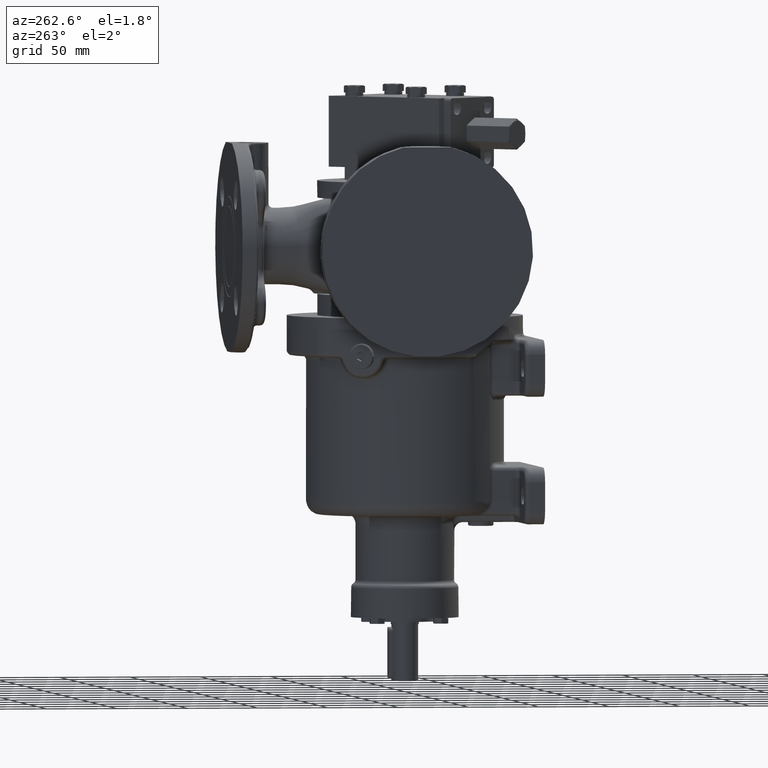
[diagram: clean part render]
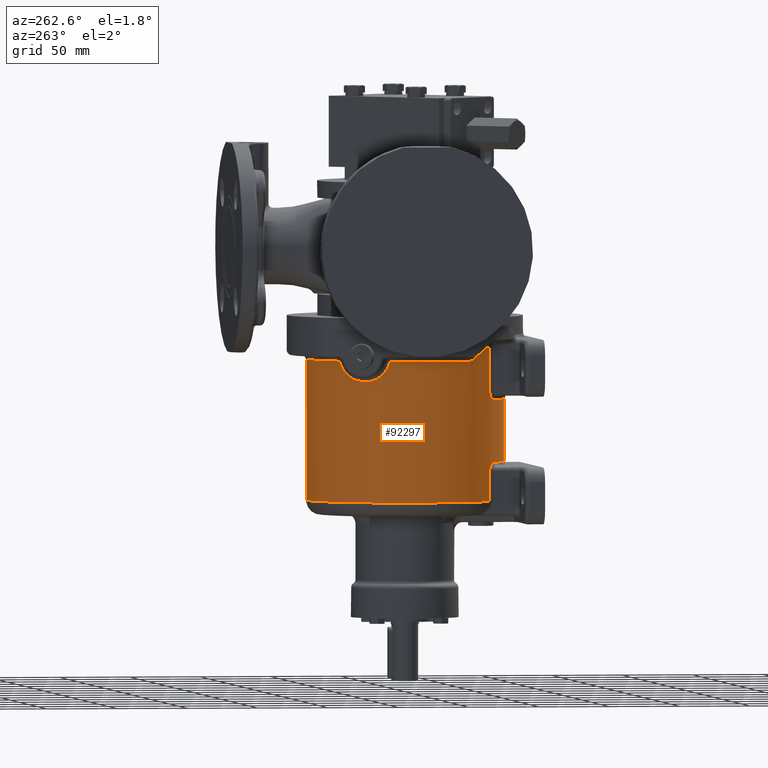
[diagram: same view with one face highlighted and labeled with its STEP entity id]
A machine part, auxiliary view. The second image highlights one B-rep face of the part: STEP entity #92297.
In plain terms, the highlighted cylindrical surface (partial cylindrical patch) has radius 70 mm, axis along (0, 0, 1).
Its self-contained STEP definition (entity closure, byte-faithful):
#26020=CARTESIAN_POINT('',(0.E0,0.E0,1.04E2));
#26021=DIRECTION('',(0.E0,0.E0,1.E0));
#26022=DIRECTION('',(-6.730944544147E-1,-7.395565261940E-1,0.E0));
#26023=AXIS2_PLACEMENT_3D('',#26020,#26021,#26022);
#26025=DIRECTION('',(0.E0,0.E0,-1.E0));
#26026=VECTOR('',#26025,3.1E1);
#26027=CARTESIAN_POINT('',(-4.363013698630E1,-5.473948434683E1,1.04E2));
#26028=LINE('',#26027,#26026);
#26029=CARTESIAN_POINT('',(-4.363013698630E1,-5.473948434683E1,7.3E1));
#26030=CARTESIAN_POINT('',(-4.363013695986E1,-5.473948437683E1,
7.291417054390E1));
#26031=CARTESIAN_POINT('',(-4.362660838589E1,-5.474229709621E1,
7.274247987779E1));
#26032=CARTESIAN_POINT('',(-4.361066586269E1,-5.475500031538E1,
7.248468360033E1));
#26033=CARTESIAN_POINT('',(-4.358401339833E1,-5.477622042771E1,
7.222712207952E1));
#26034=CARTESIAN_POINT('',(-4.354654245010E1,-5.480601820939E1,
7.196984729677E1));
#26035=CARTESIAN_POINT('',(-4.349810162602E1,-5.484447762934E1,
7.171300483235E1));
#26036=CARTESIAN_POINT('',(-4.343850616718E1,-5.489169771553E1,
7.145677669699E1));
#26037=CARTESIAN_POINT('',(-4.336753851881E1,-5.494779136948E1,
7.120138465215E1));
#26038=CARTESIAN_POINT('',(-4.328495688611E1,-5.501287776415E1,
7.094710725195E1));
#26039=CARTESIAN_POINT('',(-4.319050458292E1,-5.508707412081E1,
7.069429040645E1));
#26040=CARTESIAN_POINT('',(-4.308392084573E1,-5.517048642270E1,
7.044335467115E1));
#26041=CARTESIAN_POINT('',(-4.296494746773E1,-5.526320354780E1,
7.019479048951E1));
#26042=CARTESIAN_POINT('',(-4.283334401434E1,-5.536528491675E1,
6.994917080954E1));
#26043=CARTESIAN_POINT('',(-4.268890253150E1,-5.547674896242E1,
6.970715424135E1));
#26044=CARTESIAN_POINT('',(-4.253146296552E1,-5.559756157667E1,
6.946948519423E1));
#26045=CARTESIAN_POINT('',(-4.236092967024E1,-5.572762438558E1,
6.923699156858E1));
#26046=CARTESIAN_POINT('',(-4.217728774393E1,-5.586676395048E1,
6.901057856251E1));
#26047=CARTESIAN_POINT('',(-4.198061865344E1,-5.601472240150E1,
6.879121875886E1));
#26048=CARTESIAN_POINT('',(-4.177111409191E1,-5.617115035051E1,
6.857993824435E1));
#26049=CARTESIAN_POINT('',(-4.154908709002E1,-5.633560279808E1,
6.837779900759E1));
#26050=CARTESIAN_POINT('',(-4.131497942910E1,-5.650753864149E1,
6.818587815934E1));
#26051=CARTESIAN_POINT('',(-4.106936459286E1,-5.668632415733E1,
6.800524486282E1));
#26052=CARTESIAN_POINT('',(-4.081294566104E1,-5.687124062088E1,
6.783693607704E1));
#26053=CARTESIAN_POINT('',(-4.054654827260E1,-5.706149562930E1,
6.768193263547E1));
#26054=CARTESIAN_POINT('',(-4.027110878024E1,-5.725623767028E1,
6.754113689238E1));
#26055=CARTESIAN_POINT('',(-3.998765825975E1,-5.745457308264E1,
6.741535323923E1));
#26056=CARTESIAN_POINT('',(-3.969730337871E1,-5.765558436589E1,
6.730527248894E1));
#26057=CARTESIAN_POINT('',(-3.940120562948E1,-5.785834848950E1,
6.721146112307E1));
#26058=CARTESIAN_POINT('',(-3.910056027070E1,-5.806195422978E1,
6.713435476960E1));
#26059=CARTESIAN_POINT('',(-3.879657116686E1,-5.826552059803E1,
6.707425765769E1));
#26060=CARTESIAN_POINT('',(-3.849044955326E1,-5.846819894587E1,
6.703134328330E1));
#26061=CARTESIAN_POINT('',(-3.818333345315E1,-5.866922329312E1,
6.700566976005E1));
#26062=CARTESIAN_POINT('',(-3.797891676939E1,-5.880150212665E1,
6.700000006513E1));
#26063=CARTESIAN_POINT('',(-3.787671232877E1,-5.886726308538E1,6.7E1));
#26065=CARTESIAN_POINT('',(0.E0,0.E0,6.7E1));
#26066=DIRECTION('',(0.E0,0.E0,1.E0));
#26067=DIRECTION('',(-5.410958904110E-1,-8.409609012198E-1,0.E0));
#26068=AXIS2_PLACEMENT_3D('',#26065,#26066,#26067);
#26070=CARTESIAN_POINT('',(0.E0,-1.200151863164E-14,2.3E1));
#26071=DIRECTION('',(0.E0,0.E0,-1.E0));
#26072=DIRECTION('',(0.E0,-1.E0,0.E0));
#26073=AXIS2_PLACEMENT_3D('',#26070,#26071,#26072);
#26075=CARTESIAN_POINT('',(-3.787671232877E1,-5.886726308538E1,2.3E1));
#26076=CARTESIAN_POINT('',(-3.797891683843E1,-5.880150208251E1,
2.299999993321E1));
#26077=CARTESIAN_POINT('',(-3.818333345589E1,-5.866922328947E1,
2.299433021816E1));
#26078=CARTESIAN_POINT('',(-3.849044842689E1,-5.846819968430E1,
2.296865682402E1));
#26079=CARTESIAN_POINT('',(-3.879656916657E1,-5.826552192900E1,
2.292574265714E1));
#26080=CARTESIAN_POINT('',(-3.910055815049E1,-5.806195565682E1,
2.286564568623E1));
#26081=CARTESIAN_POINT('',(-3.940120303363E1,-5.785835025665E1,
2.278853957630E1));
#26082=CARTESIAN_POINT('',(-3.969730090438E1,-5.765558606990E1,
2.269472831995E1));
#26083=CARTESIAN_POINT('',(-3.998765584522E1,-5.745457476346E1,
2.258464767981E1));
#26084=CARTESIAN_POINT('',(-4.027110669162E1,-5.725623914035E1,
2.245886401496E1));
#26085=CARTESIAN_POINT('',(-4.054654667042E1,-5.706149676910E1,
2.231806813136E1));
#26086=CARTESIAN_POINT('',(-4.081294470860E1,-5.687124130607E1,
2.216306438796E1));
#26087=CARTESIAN_POINT('',(-4.106936442290E1,-5.668632428231E1,
2.199475511784E1));
#26088=CARTESIAN_POINT('',(-4.131498009539E1,-5.650753815614E1,
2.181412117585E1));
#26089=CARTESIAN_POINT('',(-4.154908857260E1,-5.633560170632E1,
2.162219955917E1));
#26090=CARTESIAN_POINT('',(-4.177111636426E1,-5.617114866224E1,
2.142005942886E1));
#26091=CARTESIAN_POINT('',(-4.198062165771E1,-5.601472015126E1,
2.120877791686E1));
#26092=CARTESIAN_POINT('',(-4.217729139112E1,-5.586676119805E1,
2.098941704029E1));
#26093=CARTESIAN_POINT('',(-4.236093385376E1,-5.572762120634E1,
2.076300291120E1));
#26094=CARTESIAN_POINT('',(-4.253146759666E1,-5.559755803457E1,
2.053050809707E1));
#26095=CARTESIAN_POINT('',(-4.268890754286E1,-5.547674510672E1,
2.029283776135E1));
#26096=CARTESIAN_POINT('',(-4.283334928517E1,-5.536528083918E1,
2.005081987670E1));
#26097=CARTESIAN_POINT('',(-4.296495279047E1,-5.526319940958E1,
1.980519903484E1));
#26098=CARTESIAN_POINT('',(-4.308392617875E1,-5.517048225811E1,
1.955663358715E1));
#26099=CARTESIAN_POINT('',(-4.319051006682E1,-5.508706982141E1,
1.930569599189E1));
#26100=CARTESIAN_POINT('',(-4.328496254143E1,-5.501287331454E1,
1.905287668162E1));
#26101=CARTESIAN_POINT('',(-4.336754413711E1,-5.494778693510E1,
1.879859677380E1));
#26102=CARTESIAN_POINT('',(-4.343851144070E1,-5.489169354200E1,
1.854320263884E1));
#26103=CARTESIAN_POINT('',(-4.349810627739E1,-5.484447393990E1,
1.828697311510E1));
#26104=CARTESIAN_POINT('',(-4.354654640642E1,-5.480601506554E1,
1.803012904812E1));
#26105=CARTESIAN_POINT('',(-4.358401649286E1,-5.477621796517E1,
1.777285351086E1));
#26106=CARTESIAN_POINT('',(-4.361066805803E1,-5.475499856676E1,
1.751529037579E1));
#26107=CARTESIAN_POINT('',(-4.362660909334E1,-5.474229653167E1,
1.725749923536E1));
#26108=CARTESIAN_POINT('',(-4.363013695710E1,-5.473948438030E1,
1.708582121881E1));
#26109=CARTESIAN_POINT('',(-4.363013698630E1,-5.473948434683E1,1.7E1));
#26111=DIRECTION('',(0.E0,0.E0,-1.E0));
#26112=VECTOR('',#26111,2.15E1);
#26113=CARTESIAN_POINT('',(-4.363013698630E1,-5.473948434683E1,1.7E1));
#26114=LINE('',#26113,#26112);
#26115=CARTESIAN_POINT('',(0.E0,-1.536929732930E-14,-4.5E0));
#26116=DIRECTION('',(0.E0,0.E0,1.E0));
#26117=DIRECTION('',(0.E0,1.E0,0.E0));
#26118=AXIS2_PLACEMENT_3D('',#26115,#26116,#26117);
#26120=CARTESIAN_POINT('',(0.E0,0.E0,9.5E1));
#26121=DIRECTION('',(0.E0,0.E0,1.E0));
#26122=DIRECTION('',(0.E0,1.E0,0.E0));
#26123=AXIS2_PLACEMENT_3D('',#26120,#26121,#26122);
#26125=CARTESIAN_POINT('',(-4.647223446229E1,5.234817498330E1,9.5E1));
#26126=CARTESIAN_POINT('',(-4.651413315330E1,5.231097930584E1,
9.480790647314E1));
#26127=CARTESIAN_POINT('',(-4.660424907512E1,5.223080011248E1,
9.442293773094E1));
#26128=CARTESIAN_POINT('',(-4.675877021713E1,5.209254845855E1,
9.384320428525E1));
#26129=CARTESIAN_POINT('',(-4.693289357002E1,5.193576771920E1,
9.326177524837E1));
#26130=CARTESIAN_POINT('',(-4.712701405913E1,5.175973261929E1,
9.267875737779E1));
#26131=CARTESIAN_POINT('',(-4.734141795994E1,5.156375752271E1,
9.209466977451E1));
#26132=CARTESIAN_POINT('',(-4.757635871750E1,5.134712552229E1,
9.151009798051E1));
#26133=CARTESIAN_POINT('',(-4.783198191742E1,5.110915457580E1,
9.092586647059E1));
#26134=CARTESIAN_POINT('',(-4.810831340873E1,5.084920867375E1,
9.034299283637E1));
#26135=CARTESIAN_POINT('',(-4.840521843173E1,5.056673811831E1,
8.976272144433E1));
#26136=CARTESIAN_POINT('',(-4.872237534462E1,5.026130975811E1,
8.918651322498E1));
#26137=CARTESIAN_POINT('',(-4.905924740716E1,4.993264285147E1,
8.861604065404E1));
#26138=CARTESIAN_POINT('',(-4.941506331801E1,4.958064088736E1,
8.805316635386E1));
#26139=CARTESIAN_POINT('',(-4.978880637253E1,4.920541931166E1,
8.749991161763E1));
#26140=CARTESIAN_POINT('',(-5.017921545077E1,4.880732551786E1,
8.695841320649E1));
#26141=CARTESIAN_POINT('',(-5.058479848861E1,4.838694940636E1,
8.643087147433E1));
#26142=CARTESIAN_POINT('',(-5.100385915880E1,4.794512226783E1,
8.591949192199E1));
#26143=CARTESIAN_POINT('',(-5.143453455508E1,4.748290438249E1,
8.542642542222E1));
#26144=CARTESIAN_POINT('',(-5.187484144173E1,4.700156193160E1,
8.495371098300E1));
#26145=CARTESIAN_POINT('',(-5.232272963139E1,4.650253271542E1,
8.450322312563E1));
#26146=CARTESIAN_POINT('',(-5.277613534036E1,4.598738672248E1,
8.407663100266E1));
#26147=CARTESIAN_POINT('',(-5.323303062932E1,4.545778498194E1,
8.367537070092E1));
#26148=CARTESIAN_POINT('',(-5.369146773945E1,4.491543766019E1,
8.330062940936E1));
#26149=CARTESIAN_POINT('',(-5.414961544402E1,4.436206481531E1,
8.295334175022E1));
#26150=CARTESIAN_POINT('',(-5.460578628325E1,4.379936185195E1,
8.263419671452E1));
#26151=CARTESIAN_POINT('',(-5.505845465535E1,4.322897079194E1,
8.234365298690E1));
#26152=CARTESIAN_POINT('',(-5.550626641055E1,4.265245787523E1,
8.208196027863E1));
#26153=CARTESIAN_POINT('',(-5.594804156790E1,4.207129676823E1,
8.184918419757E1));
#26154=CARTESIAN_POINT('',(-5.638277022849E1,4.148685864149E1,
8.164523333646E1));
#26155=CARTESIAN_POINT('',(-5.680960630485E1,4.090040408105E1,
8.146988556767E1));
#26156=CARTESIAN_POINT('',(-5.722785324906E1,4.031308575140E1,
8.132281543002E1));
#26157=CARTESIAN_POINT('',(-5.763695720904E1,3.972594144726E1,
8.120361588711E1));
#26158=CARTESIAN_POINT('',(-5.803648618195E1,3.913990686672E1,
8.111182428609E1));
#26159=CARTESIAN_POINT('',(-5.842610219908E1,3.855584446660E1,
8.104693878492E1));
#26160=CARTESIAN_POINT('',(-5.880562181585E1,3.797443282178E1,
8.100843473166E1));
#26161=CARTESIAN_POINT('',(-5.905166823476E1,3.758925462314E1,
8.100000007102E1));
#26162=CARTESIAN_POINT('',(-5.917300840756E1,3.739726027397E1,8.1E1));
#26164=CARTESIAN_POINT('',(0.E0,0.E0,8.1E1));
#26165=DIRECTION('',(0.E0,0.E0,1.E0));
#26166=DIRECTION('',(-8.453286915366E-1,5.342465753424E-1,0.E0));
#26167=AXIS2_PLACEMENT_3D('',#26164,#26165,#26166);
#26169=CARTESIAN_POINT('',(-6.062177826491E1,3.5E1,8.1E1));
#26170=CARTESIAN_POINT('',(-6.072857601348E1,3.481502086248E1,
8.100000007546E1));
#26171=CARTESIAN_POINT('',(-6.094040502956E1,3.444421368545E1,
8.100826266078E1));
#26172=CARTESIAN_POINT('',(-6.125304019857E1,3.388512399331E1,
8.104549549605E1));
#26173=CARTESIAN_POINT('',(-6.155991608339E1,3.332435468028E1,
8.110755975946E1));
#26174=CARTESIAN_POINT('',(-6.186088373807E1,3.276226675040E1,
8.119447953503E1));
#26175=CARTESIAN_POINT('',(-6.215563431062E1,3.219955043004E1,
8.130626553720E1));
#26176=CARTESIAN_POINT('',(-6.244392961097E1,3.163681717496E1,
8.144293450671E1));
#26177=CARTESIAN_POINT('',(-6.272552223515E1,3.107474451080E1,
8.160449578934E1));
#26178=CARTESIAN_POINT('',(-6.300017682445E1,3.051404046427E1,
8.179094921424E1));
#26179=CARTESIAN_POINT('',(-6.326766362180E1,2.995545778226E1,
8.200227860863E1));
#26180=CARTESIAN_POINT('',(-6.352775988074E1,2.939979421834E1,
8.223844551128E1));
#26181=CARTESIAN_POINT('',(-6.378024995254E1,2.884789501381E1,
8.249938226918E1));
#26182=CARTESIAN_POINT('',(-6.402492613375E1,2.830065378481E1,
8.278498469260E1));
#26183=CARTESIAN_POINT('',(-6.426158982918E1,2.775901234191E1,
8.309510453881E1));
#26184=CARTESIAN_POINT('',(-6.449005309420E1,2.722395912903E1,
8.342954204146E1));
#26185=CARTESIAN_POINT('',(-6.471014046982E1,2.669652621155E1,
8.378803876301E1));
#26186=CARTESIAN_POINT('',(-6.492169100770E1,2.617778481577E1,
8.417027100157E1));
#26187=CARTESIAN_POINT('',(-6.512456044115E1,2.566883929176E1,
8.457584412376E1));
#26188=CARTESIAN_POINT('',(-6.531862337847E1,2.517081958557E1,
8.500428812332E1));
#26189=CARTESIAN_POINT('',(-6.550377537287E1,2.468487242066E1,
8.545505462639E1));
#26190=CARTESIAN_POINT('',(-6.567993476746E1,2.421215134603E1,
8.592751561229E1));
#26191=CARTESIAN_POINT('',(-6.584704419985E1,2.375380591661E1,
8.642096405378E1));
#26192=CARTESIAN_POINT('',(-6.600507163153E1,2.331097041598E1,
8.693461651513E1));
#26193=CARTESIAN_POINT('',(-6.615401081097E1,2.288475251571E1,
8.746761769951E1));
#26194=CARTESIAN_POINT('',(-6.629388109769E1,2.247622230738E1,
8.801904681294E1));
#26195=CARTESIAN_POINT('',(-6.642472660813E1,2.208640213241E1,
8.858792551231E1));
#26196=CARTESIAN_POINT('',(-6.654661466676E1,2.171625763746E1,
8.917322705027E1));
#26197=CARTESIAN_POINT('',(-6.665963363157E1,2.136669026900E1,
8.977388634736E1));
#26198=CARTESIAN_POINT('',(-6.676389010324E1,2.103853160465E1,
9.038881042777E1));
#26199=CARTESIAN_POINT('',(-6.685950562541E1,2.073253964142E1,
9.101688819323E1));
#26200=CARTESIAN_POINT('',(-6.694661320305E1,2.044939630473E1,
9.165700241868E1));
#26201=CARTESIAN_POINT('',(-6.702535267252E1,2.018970984887E1,
9.230802920434E1));
#26202=CARTESIAN_POINT('',(-6.709586921328E1,1.995400774729E1,
9.296887795243E1));
#26203=CARTESIAN_POINT('',(-6.715830054038E1,1.974276975990E1,
9.363837911726E1));
#26204=CARTESIAN_POINT('',(-6.721279921594E1,1.955634182046E1,
9.431565331909E1));
#26205=CARTESIAN_POINT('',(-6.724389831493E1,1.944892785821E1,
9.477115439240E1));
#26206=CARTESIAN_POINT('',(-6.725817807701E1,1.939941962436E1,9.5E1));
#26208=CARTESIAN_POINT('',(0.E0,0.E0,9.5E1));
#26209=DIRECTION('',(0.E0,0.E0,1.E0));
#26210=DIRECTION('',(-9.608311153858E-1,2.771345660622E-1,0.E0));
#26211=AXIS2_PLACEMENT_3D('',#26208,#26209,#26210);
#26213=CARTESIAN_POINT('',(-5.866577463082E1,-3.818804638843E1,9.5E1));
#26214=CARTESIAN_POINT('',(-5.859966241352E1,-3.828961023686E1,
9.500000006327E1));
#26215=CARTESIAN_POINT('',(-5.846667895708E1,-3.849275150599E1,
9.500559905285E1));
#26216=CARTESIAN_POINT('',(-5.826459380935E1,-3.879796207419E1,
9.503095319112E1));
#26217=CARTESIAN_POINT('',(-5.806084259852E1,-3.910221417830E1,
9.507333611627E1));
#26218=CARTESIAN_POINT('',(-5.785618951276E1,-3.940438385565E1,
9.513269259094E1));
#26219=CARTESIAN_POINT('',(-5.765147931202E1,-3.970327744118E1,
9.520885391188E1));
#26220=CARTESIAN_POINT('',(-5.744758992420E1,-3.999770685865E1,
9.530152221558E1));
#26221=CARTESIAN_POINT('',(-5.724542875614E1,-4.028649317485E1,
9.541027085473E1));
#26222=CARTESIAN_POINT('',(-5.704591825309E1,-4.056848614003E1,
9.553454088978E1));
#26223=CARTESIAN_POINT('',(-5.684996410014E1,-4.084260470306E1,
9.567366238908E1));
#26224=CARTESIAN_POINT('',(-5.665849365077E1,-4.110778069047E1,
9.582680762243E1));
#26225=CARTESIAN_POINT('',(-5.647223671606E1,-4.136325028637E1,
9.599320995342E1));
#26226=CARTESIAN_POINT('',(-5.635240045541E1,-4.152609764002E1,
9.611200070768E1));
#26227=CARTESIAN_POINT('',(-5.629349900070E1,-4.160579250847E1,
9.617337291757E1));
#26229=CARTESIAN_POINT('',(-5.629349900070E1,-4.160579250847E1,
9.617337291757E1));
#26230=CARTESIAN_POINT('',(-5.594465721624E1,-4.207778262335E1,
9.653685128975E1));
#26231=CARTESIAN_POINT('',(-5.523740276025E1,-4.300987539997E1,
9.725465361569E1));
#26232=CARTESIAN_POINT('',(-5.414902715269E1,-4.437217130872E1,
9.830375420404E1));
#26233=CARTESIAN_POINT('',(-5.303462014881E1,-4.569816572146E1,
9.932489915860E1));
#26234=CARTESIAN_POINT('',(-5.189557289808E1,-4.698754531473E1,
1.003178471177E2));
#26235=CARTESIAN_POINT('',(-5.073323724705E1,-4.824007904138E1,
1.012824201335E2));
#26236=CARTESIAN_POINT('',(-4.954894143441E1,-4.945559361743E1,
1.022184848933E2));
#26237=CARTESIAN_POINT('',(-4.834399832037E1,-5.063396152470E1,
1.031259429332E2));
#26238=CARTESIAN_POINT('',(-4.752775695067E1,-5.139476022390E1,
1.037118321371E2));
#26239=CARTESIAN_POINT('',(-4.711661180903E1,-5.176895683358E1,1.04E2));
#26722=DIRECTION('',(0.E0,0.E0,1.E0));
#26723=VECTOR('',#26722,9.95E1);
#26724=CARTESIAN_POINT('',(0.E0,7.E1,-4.5E0));
#26725=LINE('',#26724,#26723);
#26776=DIRECTION('',(0.E0,0.E0,1.E0));
#26777=VECTOR('',#26776,4.4E1);
#26778=CARTESIAN_POINT('',(0.E0,-7.E1,2.3E1));
#26779=LINE('',#26778,#26777);
#27773=CARTESIAN_POINT('',(-4.363013698630E1,-5.473948434683E1,-4.5E0));
#31902=VERTEX_POINT('',#27773);
#31904=CARTESIAN_POINT('',(-4.363013698630E1,-5.473948434683E1,1.7E1));
#31905=VERTEX_POINT('',#31904);
#31908=VERTEX_POINT('',#26075);
#31910=CARTESIAN_POINT('',(0.E0,-7.E1,2.3E1));
#31911=VERTEX_POINT('',#31910);
#31948=CARTESIAN_POINT('',(0.E0,7.E1,-4.5E0));
#31949=VERTEX_POINT('',#31948);
#32019=CARTESIAN_POINT('',(-4.711661180903E1,-5.176895683358E1,1.04E2));
#32020=CARTESIAN_POINT('',(-4.363013698630E1,-5.473948434683E1,1.04E2));
#32021=VERTEX_POINT('',#32019);
#32022=VERTEX_POINT('',#32020);
#32029=VERTEX_POINT('',#26229);
#32031=VERTEX_POINT('',#26213);
#32033=CARTESIAN_POINT('',(-6.725817807701E1,1.939941962436E1,9.5E1));
#32034=VERTEX_POINT('',#32033);
#32039=VERTEX_POINT('',#26169);
#32041=CARTESIAN_POINT('',(-5.917300840756E1,3.739726027397E1,8.1E1));
#32042=VERTEX_POINT('',#32041);
#32045=VERTEX_POINT('',#26125);
#32049=CARTESIAN_POINT('',(0.E0,7.E1,9.5E1));
#32050=VERTEX_POINT('',#32049);
#32099=CARTESIAN_POINT('',(-4.363013698630E1,-5.473948434683E1,7.3E1));
#32100=VERTEX_POINT('',#32099);
#32101=VERTEX_POINT('',#26063);
#32103=CARTESIAN_POINT('',(-1.421083471520E-14,-7.E1,6.7E1));
#32104=VERTEX_POINT('',#32103);
#92257=CARTESIAN_POINT('',(0.E0,-2.713202983511E-14,-1.0055E2));
#92258=DIRECTION('',(0.E0,0.E0,1.E0));
#92259=DIRECTION('',(0.E0,1.E0,0.E0));
#92260=AXIS2_PLACEMENT_3D('',#92257,#92258,#92259);
#92261=CYLINDRICAL_SURFACE('',#92260,7.E1);
#92263=ORIENTED_EDGE('',*,*,#92262,.T.);
#92265=ORIENTED_EDGE('',*,*,#92264,.T.);
#92267=ORIENTED_EDGE('',*,*,#92266,.T.);
#92269=ORIENTED_EDGE('',*,*,#92268,.T.);
#92271=ORIENTED_EDGE('',*,*,#92270,.F.);
#92273=ORIENTED_EDGE('',*,*,#92272,.T.);
#92275=ORIENTED_EDGE('',*,*,#92274,.T.);
#92277=ORIENTED_EDGE('',*,*,#92276,.T.);
#92279=ORIENTED_EDGE('',*,*,#92278,.F.);
#92281=ORIENTED_EDGE('',*,*,#92280,.T.);
#92283=ORIENTED_EDGE('',*,*,#92282,.T.);
#92285=ORIENTED_EDGE('',*,*,#92284,.T.);
#92287=ORIENTED_EDGE('',*,*,#92286,.T.);
#92289=ORIENTED_EDGE('',*,*,#92288,.T.);
#92291=ORIENTED_EDGE('',*,*,#92290,.T.);
#92292=ORIENTED_EDGE('',*,*,#92247,.T.);
#92294=ORIENTED_EDGE('',*,*,#92293,.T.);
#92295=EDGE_LOOP('',(#92263,#92265,#92267,#92269,#92271,#92273,#92275,#92277,
#92279,#92281,#92283,#92285,#92287,#92289,#92291,#92292,#92294));
#92296=FACE_OUTER_BOUND('',#92295,.F.);
#92297=ADVANCED_FACE('',(#92296),#92261,.T.);
#26024=CIRCLE('',#26023,7.E1);
#26064=B_SPLINE_CURVE_WITH_KNOTS('',3,(#26029,#26030,#26031,#26032,#26033,
#26034,#26035,#26036,#26037,#26038,#26039,#26040,#26041,#26042,#26043,#26044,
#26045,#26046,#26047,#26048,#26049,#26050,#26051,#26052,#26053,#26054,#26055,
#26056,#26057,#26058,#26059,#26060,#26061,#26062,#26063),.UNSPECIFIED.,.F.,.F.,(
4,1,1,1,1,1,1,1,1,1,1,1,1,1,1,1,1,1,1,1,1,1,1,1,1,1,1,1,1,1,1,1,4),(0.E0,
3.125E-2,6.25E-2,9.375E-2,1.25E-1,1.5625E-1,1.875E-1,2.1875E-1,2.5E-1,2.8125E-1,
3.125E-1,3.4375E-1,3.75E-1,4.0625E-1,4.375E-1,4.6875E-1,5.E-1,5.3125E-1,
5.625E-1,5.9375E-1,6.25E-1,6.5625E-1,6.875E-1,7.1875E-1,7.5E-1,7.8125E-1,
8.125E-1,8.4375E-1,8.75E-1,9.0625E-1,9.375E-1,9.6875E-1,1.E0),.UNSPECIFIED.);
#26069=CIRCLE('',#26068,7.E1);
#26074=CIRCLE('',#26073,7.E1);
#26110=B_SPLINE_CURVE_WITH_KNOTS('',3,(#26075,#26076,#26077,#26078,#26079,
#26080,#26081,#26082,#26083,#26084,#26085,#26086,#26087,#26088,#26089,#26090,
#26091,#26092,#26093,#26094,#26095,#26096,#26097,#26098,#26099,#26100,#26101,
#26102,#26103,#26104,#26105,#26106,#26107,#26108,#26109),.UNSPECIFIED.,.F.,.F.,(
4,1,1,1,1,1,1,1,1,1,1,1,1,1,1,1,1,1,1,1,1,1,1,1,1,1,1,1,1,1,1,1,4),(0.E0,
3.125E-2,6.25E-2,9.375E-2,1.25E-1,1.5625E-1,1.875E-1,2.1875E-1,2.5E-1,2.8125E-1,
3.125E-1,3.4375E-1,3.75E-1,4.0625E-1,4.375E-1,4.6875E-1,5.E-1,5.3125E-1,
5.625E-1,5.9375E-1,6.25E-1,6.5625E-1,6.875E-1,7.1875E-1,7.5E-1,7.8125E-1,
8.125E-1,8.4375E-1,8.75E-1,9.0625E-1,9.375E-1,9.6875E-1,1.E0),.UNSPECIFIED.);
#26119=CIRCLE('',#26118,7.E1);
#26124=CIRCLE('',#26123,7.E1);
#26163=B_SPLINE_CURVE_WITH_KNOTS('',3,(#26125,#26126,#26127,#26128,#26129,
#26130,#26131,#26132,#26133,#26134,#26135,#26136,#26137,#26138,#26139,#26140,
#26141,#26142,#26143,#26144,#26145,#26146,#26147,#26148,#26149,#26150,#26151,
#26152,#26153,#26154,#26155,#26156,#26157,#26158,#26159,#26160,#26161,#26162),
.UNSPECIFIED.,.F.,.F.,(4,1,1,1,1,1,1,1,1,1,1,1,1,1,1,1,1,1,1,1,1,1,1,1,1,1,1,1,
1,1,1,1,1,1,1,4),(0.E0,2.857142857143E-2,5.714285714286E-2,8.571428571429E-2,
1.142857142857E-1,1.428571428571E-1,1.714285714286E-1,2.E-1,2.285714285714E-1,
2.571428571429E-1,2.857142857143E-1,3.142857142857E-1,3.428571428571E-1,
3.714285714286E-1,4.E-1,4.285714285714E-1,4.571428571429E-1,4.857142857143E-1,
5.142857142857E-1,5.428571428571E-1,5.714285714286E-1,6.E-1,6.285714285714E-1,
6.571428571429E-1,6.857142857143E-1,7.142857142857E-1,7.428571428571E-1,
7.714285714286E-1,8.E-1,8.285714285714E-1,8.571428571429E-1,8.857142857143E-1,
9.142857142857E-1,9.428571428571E-1,9.714285714286E-1,1.E0),.UNSPECIFIED.);
#26168=CIRCLE('',#26167,7.E1);
#26207=B_SPLINE_CURVE_WITH_KNOTS('',3,(#26169,#26170,#26171,#26172,#26173,
#26174,#26175,#26176,#26177,#26178,#26179,#26180,#26181,#26182,#26183,#26184,
#26185,#26186,#26187,#26188,#26189,#26190,#26191,#26192,#26193,#26194,#26195,
#26196,#26197,#26198,#26199,#26200,#26201,#26202,#26203,#26204,#26205,#26206),
.UNSPECIFIED.,.F.,.F.,(4,1,1,1,1,1,1,1,1,1,1,1,1,1,1,1,1,1,1,1,1,1,1,1,1,1,1,1,
1,1,1,1,1,1,1,4),(0.E0,2.857142857143E-2,5.714285714286E-2,8.571428571429E-2,
1.142857142857E-1,1.428571428571E-1,1.714285714286E-1,2.E-1,2.285714285714E-1,
2.571428571429E-1,2.857142857143E-1,3.142857142857E-1,3.428571428571E-1,
3.714285714286E-1,4.E-1,4.285714285714E-1,4.571428571429E-1,4.857142857143E-1,
5.142857142857E-1,5.428571428571E-1,5.714285714286E-1,6.E-1,6.285714285714E-1,
6.571428571429E-1,6.857142857143E-1,7.142857142857E-1,7.428571428571E-1,
7.714285714286E-1,8.E-1,8.285714285714E-1,8.571428571429E-1,8.857142857143E-1,
9.142857142857E-1,9.428571428571E-1,9.714285714286E-1,1.E0),.UNSPECIFIED.);
#26212=CIRCLE('',#26211,7.E1);
#26228=B_SPLINE_CURVE_WITH_KNOTS('',3,(#26213,#26214,#26215,#26216,#26217,
#26218,#26219,#26220,#26221,#26222,#26223,#26224,#26225,#26226,#26227),
.UNSPECIFIED.,.F.,.F.,(4,1,1,1,1,1,1,1,1,1,1,1,4),(0.E0,8.333333333333E-2,
1.666666666667E-1,2.5E-1,3.333333333333E-1,4.166666666667E-1,5.E-1,
5.833333333333E-1,6.666666666667E-1,7.5E-1,8.333333333333E-1,9.166666666667E-1,
1.E0),.UNSPECIFIED.);
#26240=B_SPLINE_CURVE_WITH_KNOTS('',3,(#26229,#26230,#26231,#26232,#26233,
#26234,#26235,#26236,#26237,#26238,#26239),.UNSPECIFIED.,.F.,.F.,(4,1,1,1,1,1,1,
1,4),(0.E0,1.25E-1,2.5E-1,3.75E-1,5.E-1,6.25E-1,7.5E-1,8.75E-1,1.E0),
.UNSPECIFIED.);
#92247=EDGE_CURVE('',#32031,#32029,#26228,.T.);
#92262=EDGE_CURVE('',#32021,#32022,#26024,.T.);
#92264=EDGE_CURVE('',#32022,#32100,#26028,.T.);
#92266=EDGE_CURVE('',#32100,#32101,#26064,.T.);
#92268=EDGE_CURVE('',#32101,#32104,#26069,.T.);
#92270=EDGE_CURVE('',#31911,#32104,#26779,.T.);
#92272=EDGE_CURVE('',#31911,#31908,#26074,.T.);
#92274=EDGE_CURVE('',#31908,#31905,#26110,.T.);
#92276=EDGE_CURVE('',#31905,#31902,#26114,.T.);
#92278=EDGE_CURVE('',#31949,#31902,#26119,.T.);
#92280=EDGE_CURVE('',#31949,#32050,#26725,.T.);
#92282=EDGE_CURVE('',#32050,#32045,#26124,.T.);
#92284=EDGE_CURVE('',#32045,#32042,#26163,.T.);
#92286=EDGE_CURVE('',#32042,#32039,#26168,.T.);
#92288=EDGE_CURVE('',#32039,#32034,#26207,.T.);
#92290=EDGE_CURVE('',#32034,#32031,#26212,.T.);
#92293=EDGE_CURVE('',#32029,#32021,#26240,.T.);